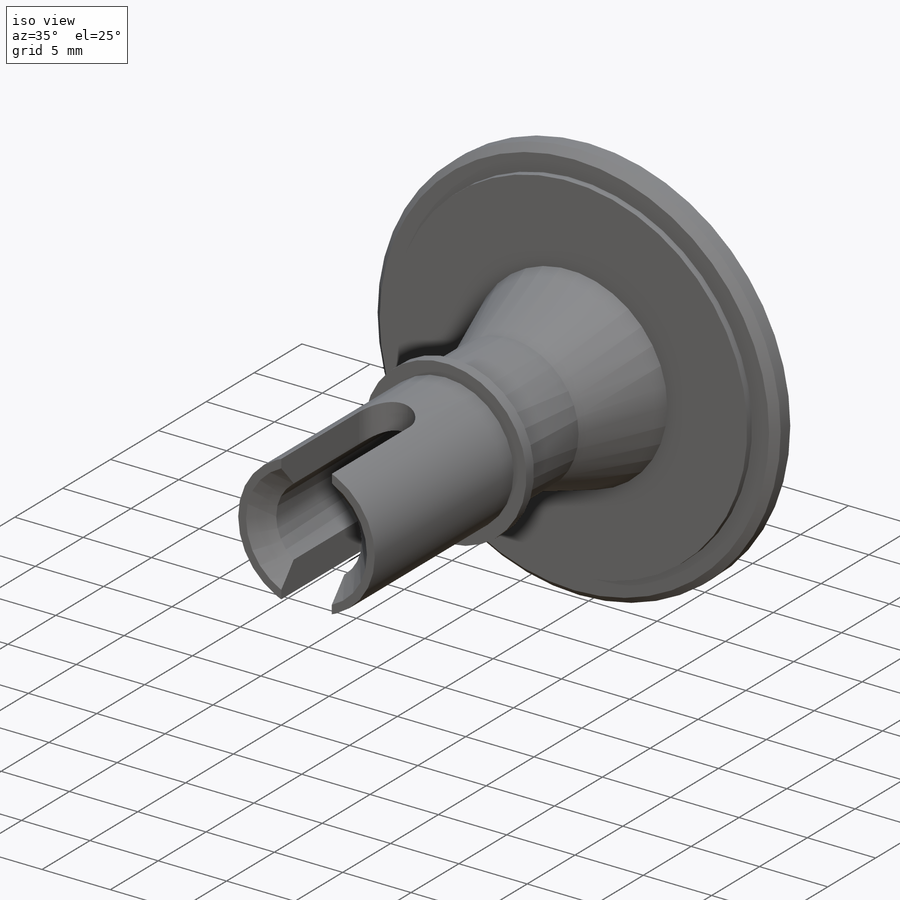
[diagram: iso view]
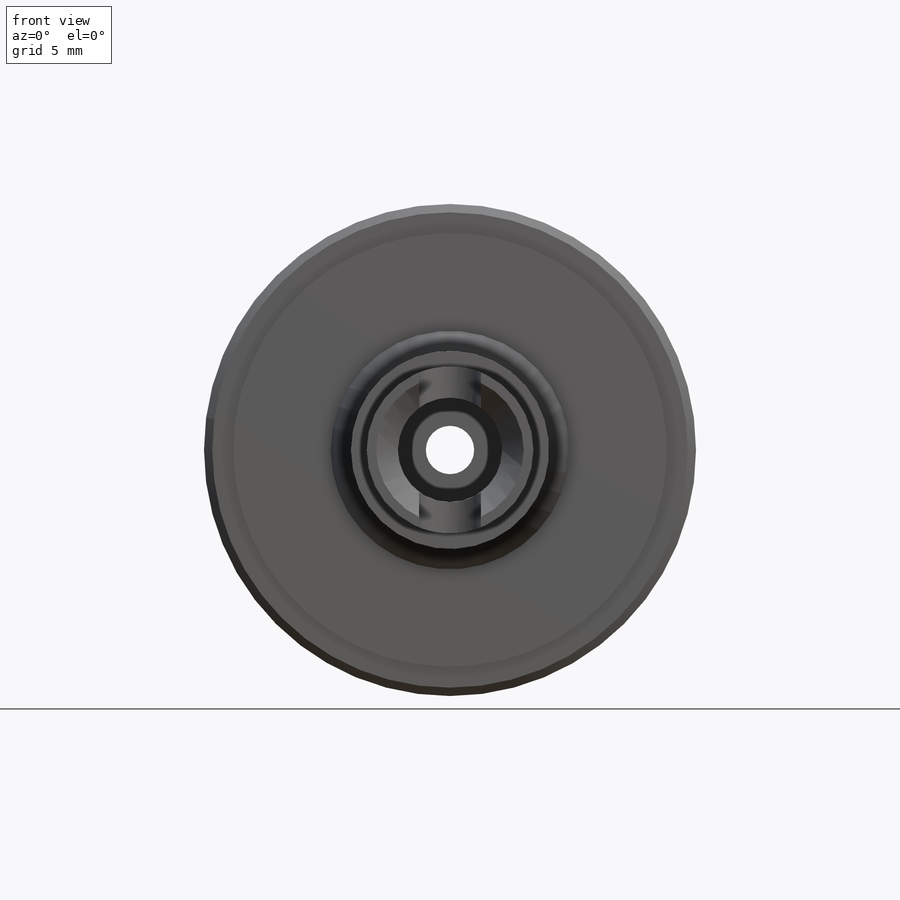
[diagram: front view]
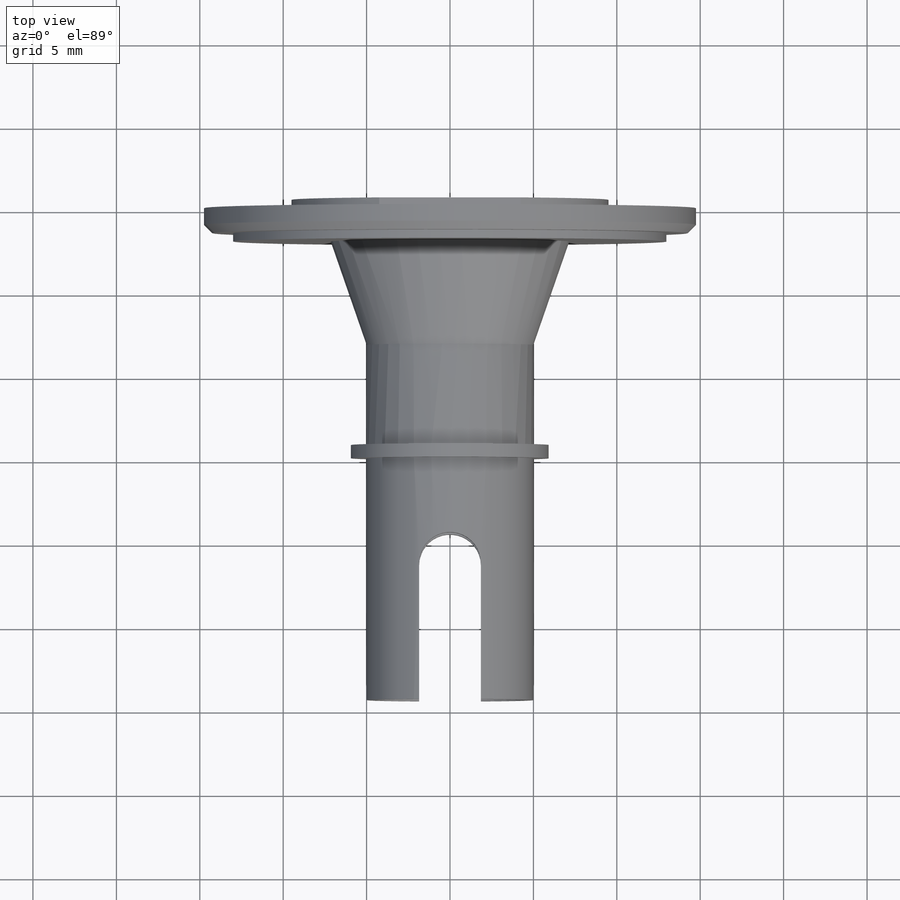
[diagram: top view]
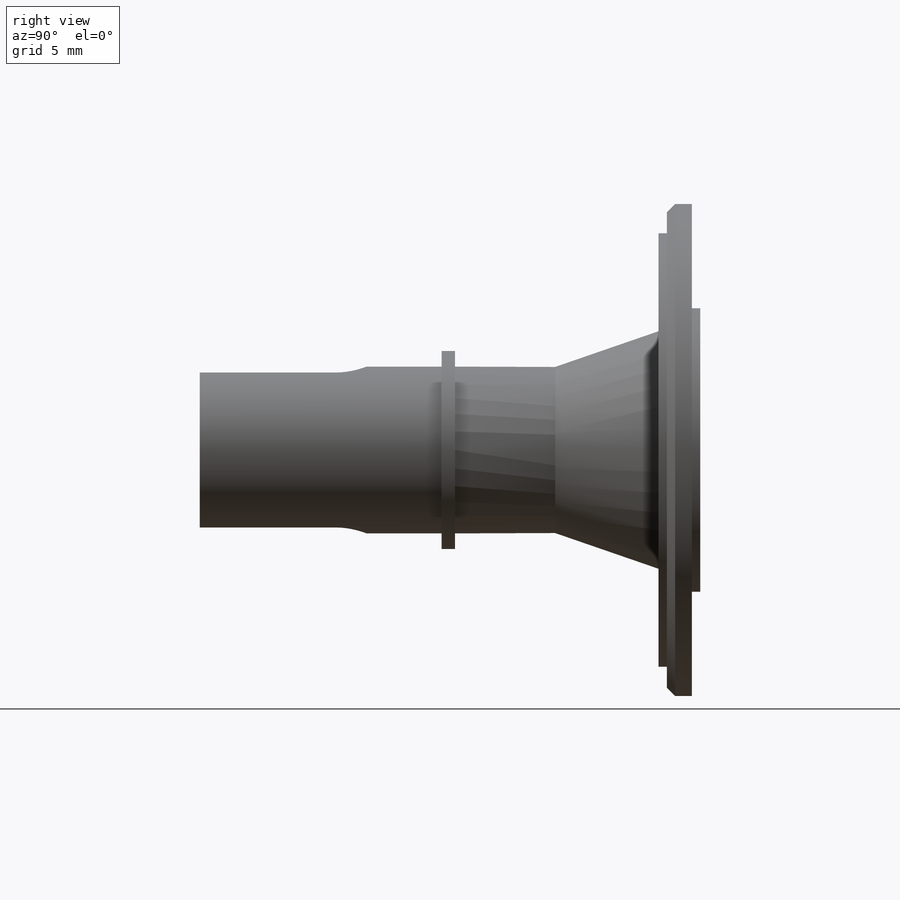
[diagram: right view]
SOLIDWORKS PART (.sldprt)
format: sldprt  version: not decoded by parser v0  size: 251,392 bytes
history: native  units: mm
features: plane x3, sketch x3, chamfer x2, cut_extrude x2, material x1, revolve x1 (+9 scaffold rows collapsed)
feature tree (21):
  scaffold x9  (default folders/planes/origin — collapsed)
  material  "PVC hart"
  plane  "Ebene vorne"
  plane  "Ebene oben"
  plane  "Ebene rechts"
  sketch  "Skizze2"  dims[c1.D1=29.5mm c1.D2=26.0mm c1.D3=2.0mm c1.D4=1.5mm c1.D5=2.5mm c1.D6=17.25mm c1.D7=10.0mm c1.D8=22.0mm c1.D9=14.1mm c1.D10=19.0mm c1.D11=15.0mm c1.D12=2.9mm c1.D13=7.8mm c1.D14=6.25mm c2.D3=2.0mm c2.D15=25.3mm c2.D16=1.5mm c2.D17=0.7mm c2.D18=~11.885097mm c2.D19=0.8mm c3.D3=2.5mm c3.D5=2.0mm c3.D8=17.25mm c3.D6=30.0mm c4.D8=2.5mm c4.D9=25.0mm c4.D20=15.3mm c4.D21=6.0mm c4.D22=14.3mm]
  revolve  "Rotation1"  Angle=360deg
  chamfer  "Fase1"  Distance=0.5mm Angle=45deg
  chamfer  "Fase2"  Distance=1.3mm Angle=45deg
  sketch  "Skizze3"  dims[D1=10.0mm D2=3.7mm]
  cut_extrude  "Schnitt-Linear austragen1"  [1 undecoded]
  sketch  "Skizze4"  dims[D1=20.0mm D2=17.0mm]
  cut_extrude  "Schnitt-Linear austragen2"  [1 undecoded]
decode coverage: 6 of 8 modeling features carry decoded parameters
note: ~ marks probable driven/reference dimensions
note: 2 parameter values undecoded
note: suppression state not decoded; provenance and decode notes live in map.json
